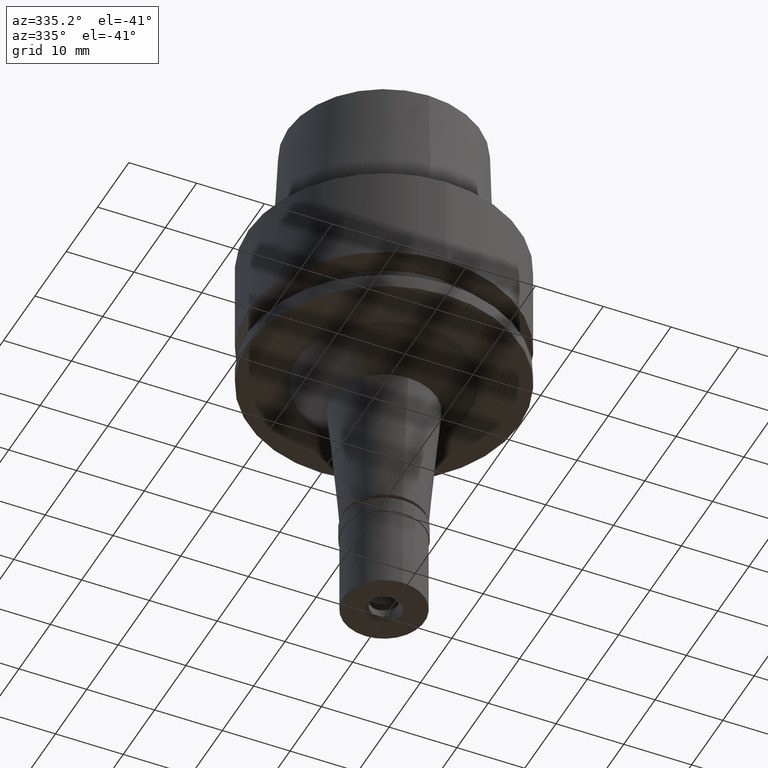
[diagram: clean part render]
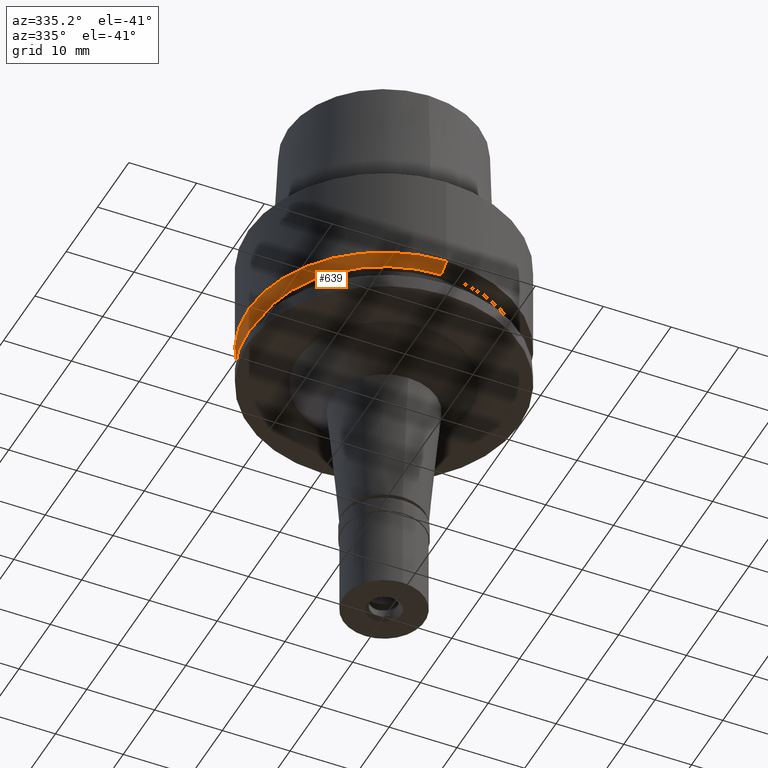
[diagram: same view with one face highlighted and labeled with its STEP entity id]
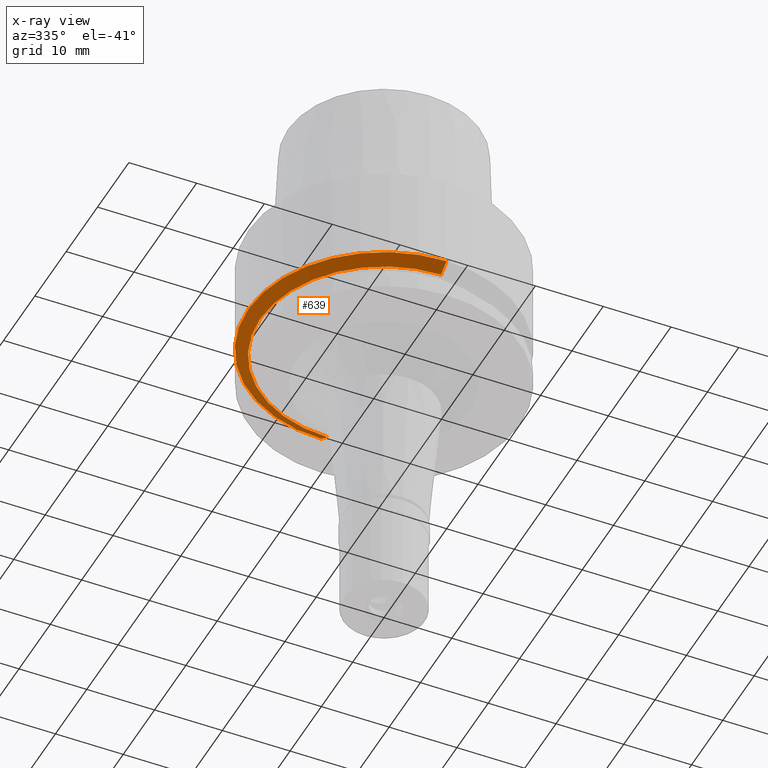
[diagram: x-ray of the same camera — body ghosted, the highlighted face saturated]
A machine part, auxiliary view. The second image highlights one B-rep face of the part: STEP entity #639.
The next image is the same camera in x-ray: the body ghosted, the highlighted face saturated — about 0% of this face is hidden behind the body in this view.
In plain terms, the highlighted conical surface has half-angle 60 deg.
Its self-contained STEP definition (entity closure, byte-faithful):
#118 = DIRECTION ( 'NONE',  ( 0.0000000000000000000, 1.000000000000000000, 0.0000000000000000000 ) ) ;
#123 = ORIENTED_EDGE ( 'NONE', *, *, #2505, .F. ) ;
#378 = VECTOR ( 'NONE', #2306, 999.9999999999998863 ) ;
#448 = CONICAL_SURFACE ( 'NONE', #2146, 19.11602540165999997, 1.047197551196400456 ) ;
#479 = LINE ( 'NONE', #2384, #1508 ) ;
#601 = EDGE_LOOP ( 'NONE', ( #1690, #1021, #123, #948 ) ) ;
#639 = ADVANCED_FACE ( 'NONE', ( #1311 ), #448, .T. ) ;
#646 = VERTEX_POINT ( 'NONE', #1926 ) ;
#696 = AXIS2_PLACEMENT_3D ( 'NONE', #1437, #1645, #1479 ) ;
#746 = VERTEX_POINT ( 'NONE', #2312 ) ;
#774 = VERTEX_POINT ( 'NONE', #1694 ) ;
#948 = ORIENTED_EDGE ( 'NONE', *, *, #2259, .T. ) ;
#1021 = ORIENTED_EDGE ( 'NONE', *, *, #1275, .F. ) ;
#1091 = DIRECTION ( 'NONE',  ( 0.0000000000000000000, 1.000000000000000000, 0.0000000000000000000 ) ) ;
#1108 = CARTESIAN_POINT ( 'NONE',  ( 0.0000000000000000000, 0.0000000000000000000, -14.48963702768999973 ) ) ;
#1125 = DIRECTION ( 'NONE',  ( 0.0000000000000000000, 0.0000000000000000000, 1.000000000000000000 ) ) ;
#1275 = EDGE_CURVE ( 'NONE', #774, #646, #1892, .T. ) ;
#1311 = FACE_OUTER_BOUND ( 'NONE', #601, .T. ) ;
#1437 = CARTESIAN_POINT ( 'NONE',  ( 0.0000000000000000000, 0.0000000000000000000, -15.00000000000000000 ) ) ;
#1471 = CARTESIAN_POINT ( 'NONE',  ( 0.0000000000000000000, -20.00000000000000000, -13.97927405538000123 ) ) ;
#1479 = DIRECTION ( 'NONE',  ( 0.0000000000000000000, 1.000000000000000000, 0.0000000000000000000 ) ) ;
#1508 = VECTOR ( 'NONE', #2143, 999.9999999999998863 ) ;
#1553 = CIRCLE ( 'NONE', #2420, 20.00000000000000000 ) ;
#1645 = DIRECTION ( 'NONE',  ( 0.0000000000000000000, 0.0000000000000000000, 1.000000000000000000 ) ) ;
#1690 = ORIENTED_EDGE ( 'NONE', *, *, #1969, .T. ) ;
#1694 = CARTESIAN_POINT ( 'NONE',  ( 0.0000000000000000000, -20.00000000000000000, -13.97927405538000123 ) ) ;
#1806 = DIRECTION ( 'NONE',  ( 0.0000000000000000000, 0.0000000000000000000, 1.000000000000000000 ) ) ;
#1829 = CARTESIAN_POINT ( 'NONE',  ( 0.0000000000000000000, 20.00000000000000000, -13.97927405538000123 ) ) ;
#1874 = CIRCLE ( 'NONE', #696, 18.23205080331999994 ) ;
#1892 = LINE ( 'NONE', #1471, #378 ) ;
#1926 = CARTESIAN_POINT ( 'NONE',  ( 0.0000000000000000000, -18.23205080331999994, -15.00000000000000000 ) ) ;
#1969 = EDGE_CURVE ( 'NONE', #746, #646, #1874, .T. ) ;
#2014 = CARTESIAN_POINT ( 'NONE',  ( 0.0000000000000000000, 0.0000000000000000000, -13.97927405538000123 ) ) ;
#2143 = DIRECTION ( 'NONE',  ( 0.0000000000000000000, -0.8660254037841628172, -0.5000000000004778400 ) ) ;
#2146 = AXIS2_PLACEMENT_3D ( 'NONE', #1108, #1125, #1091 ) ;
#2259 = EDGE_CURVE ( 'NONE', #2359, #746, #479, .T. ) ;
#2306 = DIRECTION ( 'NONE',  ( 0.0000000000000000000, 0.8660254037841628172, -0.5000000000004778400 ) ) ;
#2312 = CARTESIAN_POINT ( 'NONE',  ( 0.0000000000000000000, 18.23205080331999994, -15.00000000000000000 ) ) ;
#2359 = VERTEX_POINT ( 'NONE', #1829 ) ;
#2384 = CARTESIAN_POINT ( 'NONE',  ( 0.0000000000000000000, 20.00000000000000000, -13.97927405538000123 ) ) ;
#2420 = AXIS2_PLACEMENT_3D ( 'NONE', #2014, #1806, #118 ) ;
#2505 = EDGE_CURVE ( 'NONE', #2359, #774, #1553, .T. ) ;